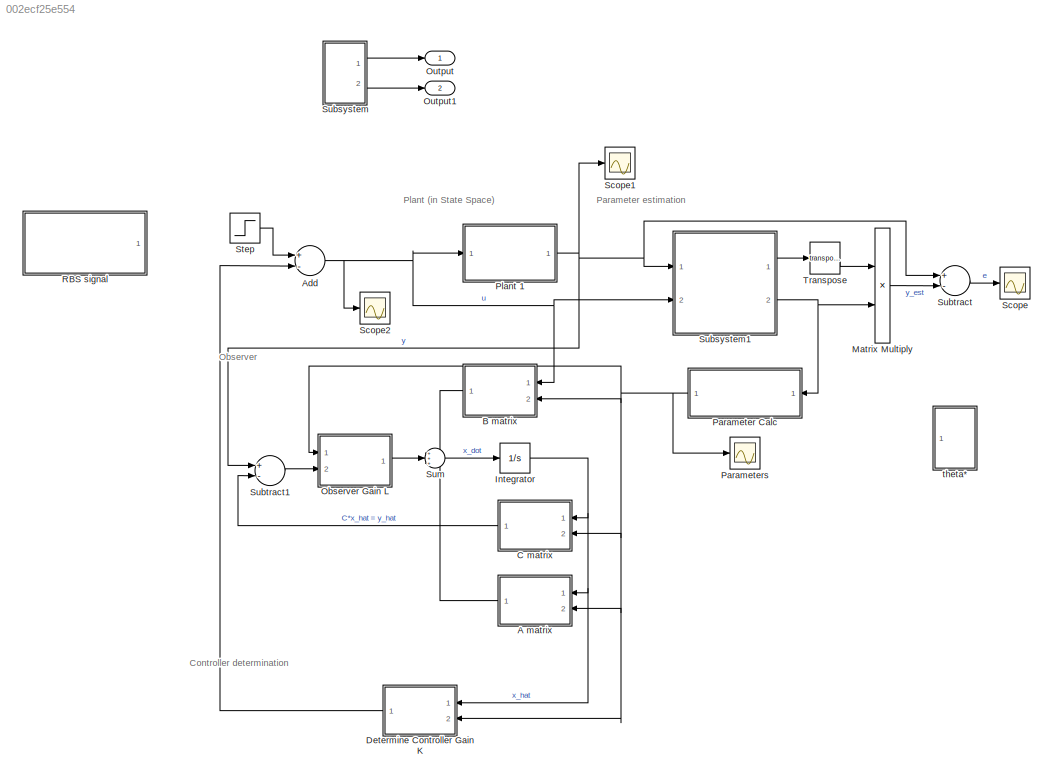
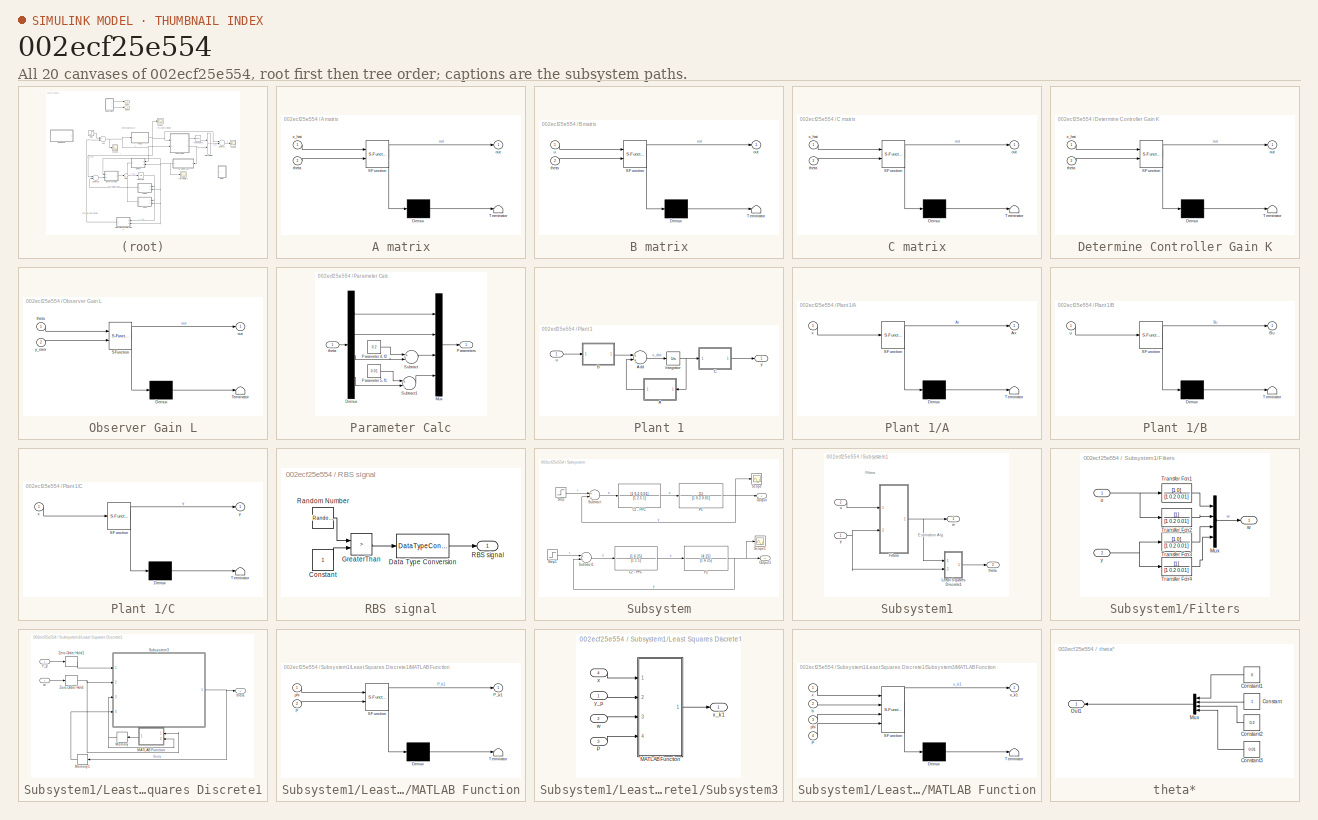
[diagram: thumbnail index - all 20 canvases of the model, root first then tree order]
MODEL slx_002ecf25e554
KIND model
CONFIG AbsTol = auto
CONFIG EnableMultiTasking = off
CONFIG FixedStep = auto
CONFIG MaxStep = auto
CONFIG MinStep = auto
CONFIG RelTol = 1e-3
CONFIG SampleTimeConstraint = Unconstrained
CONFIG Solver = VariableStepAuto
CONFIG SolverName = VariableStepAuto
CONFIG StartTime = 0.0
CONFIG StopTime = 20
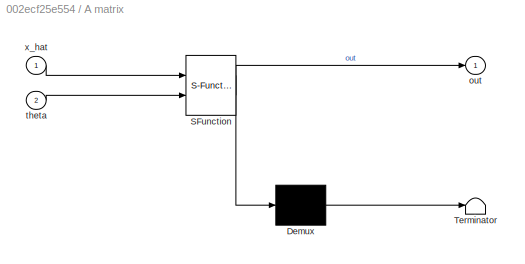
BLOCK [SubSystem] A matrix
  ErrorFcn = Stateflow.Translate.translate
  PermitHierarchicalResolution = ExplicitOnly
  Ports = [2, 1]
  RequestExecContextInheritance = off
  SFBlockType = MATLAB Function
  TreatAsAtomicUnit = on
BLOCK [Demux] A matrix/ Demux 
  Outputs = 1
  Ports = [1, 1]
BLOCK [S-Function] A matrix/ SFunction 
  EnableBusSupport = on
  FunctionName = sf_sfun
  PortCounts = [2 2]
  Ports = [2, 2]
  SFcnIsStateOwnerBlock = off
  SFunctionDeploymentMode = off
  Tag = Stateflow S-Function PPC_P1_observer 10
BLOCK [Terminator] A matrix/ Terminator 
BLOCK [Outport] A matrix/out
  IconDisplay = Port number
BLOCK [Inport] A matrix/theta
  IconDisplay = Port number
  Port = 2
BLOCK [Inport] A matrix/x_hat
  IconDisplay = Port number
BLOCK [Sum] Add
  InputSameDT = off
  Inputs = +-
  OutDataTypeStr = Inherit: Inherit via internal rule
  Ports = [2, 1]
  SaturateOnIntegerOverflow = off
BLOCK [SubSystem] B matrix
  ErrorFcn = Stateflow.Translate.translate
  PermitHierarchicalResolution = ExplicitOnly
  Ports = [2, 1]
  RequestExecContextInheritance = off
  SFBlockType = MATLAB Function
  TreatAsAtomicUnit = on
BLOCK [Demux] B matrix/ Demux 
  Outputs = 1
  Ports = [1, 1]
BLOCK [S-Function] B matrix/ SFunction 
  EnableBusSupport = on
  FunctionName = sf_sfun
  PortCounts = [2 2]
  Ports = [2, 2]
  SFcnIsStateOwnerBlock = off
  SFunctionDeploymentMode = off
  Tag = Stateflow S-Function PPC_P1_observer 8
BLOCK [Terminator] B matrix/ Terminator 
BLOCK [Outport] B matrix/out
  IconDisplay = Port number
BLOCK [Inport] B matrix/theta
  IconDisplay = Port number
  Port = 2
BLOCK [Inport] B matrix/u
  IconDisplay = Port number
BLOCK [SubSystem] C matrix
  ErrorFcn = Stateflow.Translate.translate
  PermitHierarchicalResolution = ExplicitOnly
  Ports = [2, 1]
  RequestExecContextInheritance = off
  SFBlockType = MATLAB Function
  TreatAsAtomicUnit = on
BLOCK [Demux] C matrix/ Demux 
  Outputs = 1
  Ports = [1, 1]
BLOCK [S-Function] C matrix/ SFunction 
  EnableBusSupport = on
  FunctionName = sf_sfun
  PortCounts = [2 2]
  Ports = [2, 2]
  SFcnIsStateOwnerBlock = off
  SFunctionDeploymentMode = off
  Tag = Stateflow S-Function PPC_P1_observer 9
BLOCK [Terminator] C matrix/ Terminator 
BLOCK [Outport] C matrix/out
  IconDisplay = Port number
BLOCK [Inport] C matrix/theta
  IconDisplay = Port number
  Port = 2
BLOCK [Inport] C matrix/x_hat
  IconDisplay = Port number
BLOCK [SubSystem] Determine Controller Gain K
  ErrorFcn = Stateflow.Translate.translate
  PermitHierarchicalResolution = ExplicitOnly
  Ports = [2, 1]
  RequestExecContextInheritance = off
  SFBlockType = MATLAB Function
  TreatAsAtomicUnit = on
BLOCK [Demux] Determine Controller Gain K/ Demux 
  Outputs = 1
  Ports = [1, 1]
BLOCK [S-Function] Determine Controller Gain K/ SFunction 
  EnableBusSupport = on
  FunctionName = sf_sfun
  PortCounts = [2 2]
  Ports = [2, 2]
  SFcnIsStateOwnerBlock = off
  SFunctionDeploymentMode = off
  Tag = Stateflow S-Function PPC_P1_observer 2
BLOCK [Terminator] Determine Controller Gain K/ Terminator 
BLOCK [Outport] Determine Controller Gain K/out
  IconDisplay = Port number
BLOCK [Inport] Determine Controller Gain K/theta
  IconDisplay = Port number
  Port = 2
BLOCK [Inport] Determine Controller Gain K/x_hat
  IconDisplay = Port number
BLOCK [Integrator] Integrator
  Ports = [1, 1]
BLOCK [Product] Matrix Multiply
  InputSameDT = off
  Multiplication = Matrix(*)
  OutDataTypeStr = Inherit: Inherit via internal rule
  Ports = [2, 1]
  RndMeth = Floor
  SaturateOnIntegerOverflow = off
BLOCK [SubSystem] Observer Gain L
  ErrorFcn = Stateflow.Translate.translate
  PermitHierarchicalResolution = ExplicitOnly
  Ports = [2, 1]
  RequestExecContextInheritance = off
  SFBlockType = MATLAB Function
  TreatAsAtomicUnit = on
BLOCK [Demux] Observer Gain L/ Demux 
  Outputs = 1
  Ports = [1, 1]
BLOCK [S-Function] Observer Gain L/ SFunction 
  EnableBusSupport = on
  FunctionName = sf_sfun
  PortCounts = [2 2]
  Ports = [2, 2]
  SFcnIsStateOwnerBlock = off
  SFunctionDeploymentMode = off
  Tag = Stateflow S-Function PPC_P1_observer 6
BLOCK [Terminator] Observer Gain L/ Terminator 
BLOCK [Outport] Observer Gain L/out
  IconDisplay = Port number
BLOCK [Inport] Observer Gain L/theta
  IconDisplay = Port number
BLOCK [Inport] Observer Gain L/y_error
  IconDisplay = Port number
  Port = 2
BLOCK [Outport] Output
  IconDisplay = Port number
BLOCK [Outport] Output1
  IconDisplay = Port number
  Port = 2
BLOCK [SubSystem] Parameter Calc
  Ports = [1, 1]
  RequestExecContextInheritance = off
BLOCK [Demux] Parameter Calc/Demux
  DisplayOption = bar
  Ports = [1, 4]
BLOCK [Mux] Parameter Calc/Mux
  DisplayOption = bar
  Ports = [4, 1]
BLOCK [Constant] Parameter Calc/Parameter 4, f2
  Value = 0.2
BLOCK [Constant] Parameter Calc/Parameter 5, f1
  Value = 0.01
BLOCK [Outport] Parameter Calc/Parameters
  IconDisplay = Port number
BLOCK [Sum] Parameter Calc/Subtract
  InputSameDT = off
  Inputs = +-
  OutDataTypeStr = Inherit: Inherit via internal rule
  Ports = [2, 1]
  SaturateOnIntegerOverflow = off
BLOCK [Sum] Parameter Calc/Subtract1
  InputSameDT = off
  Inputs = +-
  OutDataTypeStr = Inherit: Inherit via internal rule
  Ports = [2, 1]
  SaturateOnIntegerOverflow = off
BLOCK [Inport] Parameter Calc/theta
  IconDisplay = Port number
BLOCK [Scope] Parameters
  Floating = off
  NumInputPorts = 1
  Ports = [1]
  ScopeSpecificationString = Simulink.scopes.TimeScopeBlockCfg('CurrentConfiguration', extmgr.ConfigurationSet(extmgr.Configuration('Core','General UI',true,'FigureColor',[1 1 1]),extmgr.Configuration('Core','Source UI',true),extmgr.Configuration('Sources','WiredSimulink',true,'DataLoggingVariableName','ScopeData9'),extmgr.Configuration('Visuals','Time Domain',true,'SerializedDisplays',{struct('MinYLimReal','-0.12512','MaxYLi...<+1667ch>
BLOCK [SubSystem] Plant 1
  Ports = [1, 1]
  RequestExecContextInheritance = off
BLOCK [SubSystem] Plant 1/A
  ErrorFcn = Stateflow.Translate.translate
  PermitHierarchicalResolution = ExplicitOnly
  Ports = [1, 1]
  RequestExecContextInheritance = off
  SFBlockType = MATLAB Function
  TreatAsAtomicUnit = on
BLOCK [Demux] Plant 1/A/ Demux 
  Outputs = 1
  Ports = [1, 1]
BLOCK [S-Function] Plant 1/A/ SFunction 
  EnableBusSupport = on
  FunctionName = sf_sfun
  PortCounts = [1 2]
  Ports = [1, 2]
  SFcnIsStateOwnerBlock = off
  SFunctionDeploymentMode = off
  Tag = Stateflow S-Function PPC_P1_observer 3
BLOCK [Terminator] Plant 1/A/ Terminator 
BLOCK [Outport] Plant 1/A/Ax
  IconDisplay = Port number
BLOCK [Inport] Plant 1/A/x
  IconDisplay = Port number
BLOCK [Sum] Plant 1/Add
  InputSameDT = off
  OutDataTypeStr = Inherit: Inherit via internal rule
  Ports = [2, 1]
  SaturateOnIntegerOverflow = off
BLOCK [SubSystem] Plant 1/B
  ErrorFcn = Stateflow.Translate.translate
  PermitHierarchicalResolution = ExplicitOnly
  Ports = [1, 1]
  RequestExecContextInheritance = off
  SFBlockType = MATLAB Function
  TreatAsAtomicUnit = on
BLOCK [Demux] Plant 1/B/ Demux 
  Outputs = 1
  Ports = [1, 1]
BLOCK [S-Function] Plant 1/B/ SFunction 
  EnableBusSupport = on
  FunctionName = sf_sfun
  PortCounts = [1 2]
  Ports = [1, 2]
  SFcnIsStateOwnerBlock = off
  SFunctionDeploymentMode = off
  Tag = Stateflow S-Function PPC_P1_observer 4
BLOCK [Terminator] Plant 1/B/ Terminator 
BLOCK [Outport] Plant 1/B/Bu
  IconDisplay = Port number
BLOCK [Inport] Plant 1/B/u
  IconDisplay = Port number
BLOCK [SubSystem] Plant 1/C
  ErrorFcn = Stateflow.Translate.translate
  PermitHierarchicalResolution = ExplicitOnly
  Ports = [1, 1]
  RequestExecContextInheritance = off
  SFBlockType = MATLAB Function
  TreatAsAtomicUnit = on
BLOCK [Demux] Plant 1/C/ Demux 
  Outputs = 1
  Ports = [1, 1]
BLOCK [S-Function] Plant 1/C/ SFunction 
  EnableBusSupport = on
  FunctionName = sf_sfun
  PortCounts = [1 2]
  Ports = [1, 2]
  SFcnIsStateOwnerBlock = off
  SFunctionDeploymentMode = off
  Tag = Stateflow S-Function PPC_P1_observer 5
BLOCK [Terminator] Plant 1/C/ Terminator 
BLOCK [Inport] Plant 1/C/x
  IconDisplay = Port number
BLOCK [Outport] Plant 1/C/y
  IconDisplay = Port number
BLOCK [Integrator] Plant 1/Integrator
  InitialCondition = [0 0]
  Ports = [1, 1]
BLOCK [Inport] Plant 1/u
  IconDisplay = Port number
  PortDimensions = 1
BLOCK [Outport] Plant 1/y
  IconDisplay = Port number
BLOCK [SubSystem] RBS signal
  Ports = [0, 1]
  RequestExecContextInheritance = off
BLOCK [Constant] RBS signal/Constant
BLOCK [DataTypeConversion] RBS signal/Data Type Conversion
  OutDataTypeStr = double
  RndMeth = Floor
  SaturateOnIntegerOverflow = off
BLOCK [RelationalOperator] RBS signal/GreaterThan
  InputSameDT = off
  Operator = >
  OutDataTypeStr = boolean
  Ports = [2, 1]
  RndMeth = Simplest
BLOCK [Outport] RBS signal/RBS signal
  IconDisplay = Port number
BLOCK [RandomNumber] RBS signal/Random Number
  Mean = 1
  SampleTime = 0.1
BLOCK [Scope] Scope
  Floating = off
  NumInputPorts = 1
  Ports = [1]
  ScopeSpecificationString = Simulink.scopes.TimeScopeBlockCfg('CurrentConfiguration', extmgr.ConfigurationSet(extmgr.Configuration('Core','General UI',true),extmgr.Configuration('Core','Source UI',true),extmgr.Configuration('Sources','WiredSimulink',true,'DataLoggingVariableName','ScopeData1'),extmgr.Configuration('Visuals','Time Domain',true,'SerializedDisplays',{struct('MinYLimReal','-0.00008','MaxYLimReal','0.00044','YLab...<+1360ch>
BLOCK [Scope] Scope1
  Floating = off
  NumInputPorts = 1
  Ports = [1]
  ScopeSpecificationString = Simulink.scopes.TimeScopeBlockCfg('CurrentConfiguration', extmgr.ConfigurationSet(extmgr.Configuration('Core','General UI',true),extmgr.Configuration('Core','Source UI',true),extmgr.Configuration('Sources','WiredSimulink',true,'DataLoggingVariableName','ScopeData2'),extmgr.Configuration('Visuals','Time Domain',true,'SerializedDisplays',{struct('MinYLimReal','-0.125','MaxYLimReal','1.12498','YLabel...<+1385ch>
BLOCK [Scope] Scope2
  Floating = off
  NumInputPorts = 1
  Ports = [1]
  ScopeSpecificationString = Simulink.scopes.TimeScopeBlockCfg('CurrentConfiguration', extmgr.ConfigurationSet(extmgr.Configuration('Core','General UI',true),extmgr.Configuration('Core','Source UI',true),extmgr.Configuration('Sources','WiredSimulink',true,'DataLoggingVariableName','ScopeData3'),extmgr.Configuration('Visuals','Time Domain',true,'SerializedDisplays',{struct('MinYLimReal','-0.21491','MaxYLimReal','1.13499','YLab...<+1360ch>
BLOCK [Step] Step
  SampleTime = 0
BLOCK [SubSystem] Subsystem
  Ports = [0, 2]
  RequestExecContextInheritance = off
BLOCK [TransferFcn] Subsystem/C1 - PPC
  Denominator = [1 2.5 1]
  Numerator = [1 0.2 0.01]
BLOCK [TransferFcn] Subsystem/C2 - PPC
  Denominator = [1 1 1]
  Numerator = [1 6 25]
BLOCK [Outport] Subsystem/Output
  IconDisplay = Port number
BLOCK [Outport] Subsystem/Output1
  IconDisplay = Port number
  Port = 2
BLOCK [TransferFcn] Subsystem/P1
  Denominator = [1 0.2 0.01]
BLOCK [TransferFcn] Subsystem/P2
  Denominator = [1 6 25]
  Numerator = [4 25]
BLOCK [Scope] Subsystem/Scope
  Floating = off
  NumInputPorts = 1
  Ports = [1]
  ScopeSpecificationString = Simulink.scopes.TimeScopeBlockCfg('CurrentConfiguration', extmgr.ConfigurationSet(extmgr.Configuration('Core','General UI',true),extmgr.Configuration('Core','Source UI',true),extmgr.Configuration('Sources','WiredSimulink',true),extmgr.Configuration('Visuals','Time Domain',true,'SerializedDisplays',{struct('MinYLimReal','-0.06266','MaxYLimReal','0.56398','YLabelReal','','MinYLimMag','0.00000','MaxY...<+1321ch>
BLOCK [Scope] Subsystem/Scope1
  Floating = off
  NumInputPorts = 1
  Ports = [1]
  ScopeSpecificationString = Simulink.scopes.TimeScopeBlockCfg('CurrentConfiguration', extmgr.ConfigurationSet(extmgr.Configuration('Core','General UI',true),extmgr.Configuration('Core','Source UI',true),extmgr.Configuration('Sources','WiredSimulink',true,'DataLoggingVariableName','ScopeData1'),extmgr.Configuration('Visuals','Time Domain',true,'SerializedDisplays',{struct('MinYLimReal','-0.15006','MaxYLimReal','1.35052','YLab...<+1392ch>
BLOCK [Step] Subsystem/Step
  SampleTime = 0
BLOCK [Step] Subsystem/Step1
  SampleTime = 0
BLOCK [Sum] Subsystem/Subtract
  InputSameDT = off
  Inputs = +-
  OutDataTypeStr = Inherit: Inherit via internal rule
  Ports = [2, 1]
  SaturateOnIntegerOverflow = off
BLOCK [Sum] Subsystem/Subtract1
  InputSameDT = off
  Inputs = +-
  OutDataTypeStr = Inherit: Inherit via internal rule
  Ports = [2, 1]
  SaturateOnIntegerOverflow = off
BLOCK [SubSystem] Subsystem1
  Ports = [2, 2]
  RequestExecContextInheritance = off
BLOCK [SubSystem] Subsystem1/Filters
  Ports = [2, 1]
  RequestExecContextInheritance = off
BLOCK [Mux] Subsystem1/Filters/Mux
  DisplayOption = bar
  Ports = [4, 1]
BLOCK [TransferFcn] Subsystem1/Filters/Transfer Fcn1
  Denominator = [1 0.2 0.01]
  Numerator = [1 0]
BLOCK [TransferFcn] Subsystem1/Filters/Transfer Fcn2
  Denominator = [1 0.2 0.01]
BLOCK [TransferFcn] Subsystem1/Filters/Transfer Fcn3
  Denominator = [1 0.2 0.01]
  Numerator = [1 0]
BLOCK [TransferFcn] Subsystem1/Filters/Transfer Fcn4
  Denominator = [1 0.2 0.01]
BLOCK [Inport] Subsystem1/Filters/u
  IconDisplay = Port number
  PortDimensions = 1
BLOCK [Outport] Subsystem1/Filters/w
  IconDisplay = Port number
BLOCK [Inport] Subsystem1/Filters/y
  IconDisplay = Port number
  Port = 2
BLOCK [SubSystem] Subsystem1/Least Squares Discrete1
  Ports = [2, 1]
  RequestExecContextInheritance = off
BLOCK [SubSystem] Subsystem1/Least Squares Discrete1/MATLAB Function
  ErrorFcn = Stateflow.Translate.translate
  PermitHierarchicalResolution = ExplicitOnly
  Ports = [2, 1]
  RequestExecContextInheritance = off
  SFBlockType = MATLAB Function
  TreatAsAtomicUnit = on
BLOCK [Demux] Subsystem1/Least Squares Discrete1/MATLAB Function/ Demux 
  Outputs = 1
  Ports = [1, 1]
BLOCK [S-Function] Subsystem1/Least Squares Discrete1/MATLAB Function/ SFunction 
  EnableBusSupport = on
  FunctionName = sf_sfun
  PortCounts = [2 2]
  Ports = [2, 2]
  SFcnIsStateOwnerBlock = off
  SFunctionDeploymentMode = off
  Tag = Stateflow S-Function PPC_P1_observer 1
BLOCK [Terminator] Subsystem1/Least Squares Discrete1/MATLAB Function/ Terminator 
BLOCK [Inport] Subsystem1/Least Squares Discrete1/MATLAB Function/P
  IconDisplay = Port number
  Port = 2
BLOCK [Outport] Subsystem1/Least Squares Discrete1/MATLAB Function/P_k1
  IconDisplay = Port number
BLOCK [Inport] Subsystem1/Least Squares Discrete1/MATLAB Function/phi
  IconDisplay = Port number
BLOCK [Memory] Subsystem1/Least Squares Discrete1/Memory
  InitialCondition = 100000*eye(4)
BLOCK [Memory] Subsystem1/Least Squares Discrete1/Memory1
  InitialCondition = [0 0 0 0]
BLOCK [SubSystem] Subsystem1/Least Squares Discrete1/Subsystem3
  Ports = [4, 1]
  RequestExecContextInheritance = off
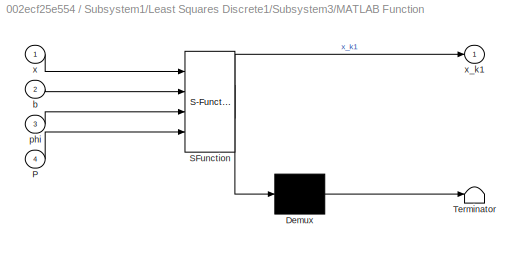
BLOCK [SubSystem] Subsystem1/Least Squares Discrete1/Subsystem3/MATLAB Function
  ErrorFcn = Stateflow.Translate.translate
  PermitHierarchicalResolution = ExplicitOnly
  Ports = [4, 1]
  RequestExecContextInheritance = off
  SFBlockType = MATLAB Function
  TreatAsAtomicUnit = on
BLOCK [Demux] Subsystem1/Least Squares Discrete1/Subsystem3/MATLAB Function/ Demux 
  Outputs = 1
  Ports = [1, 1]
BLOCK [S-Function] Subsystem1/Least Squares Discrete1/Subsystem3/MATLAB Function/ SFunction 
  EnableBusSupport = on
  FunctionName = sf_sfun
  PortCounts = [4 2]
  Ports = [4, 2]
  SFcnIsStateOwnerBlock = off
  SFunctionDeploymentMode = off
  Tag = Stateflow S-Function PPC_P1_observer 7
BLOCK [Terminator] Subsystem1/Least Squares Discrete1/Subsystem3/MATLAB Function/ Terminator 
BLOCK [Inport] Subsystem1/Least Squares Discrete1/Subsystem3/MATLAB Function/P
  IconDisplay = Port number
  Port = 4
BLOCK [Inport] Subsystem1/Least Squares Discrete1/Subsystem3/MATLAB Function/b
  IconDisplay = Port number
  Port = 2
BLOCK [Inport] Subsystem1/Least Squares Discrete1/Subsystem3/MATLAB Function/phi
  IconDisplay = Port number
  Port = 3
BLOCK [Inport] Subsystem1/Least Squares Discrete1/Subsystem3/MATLAB Function/x
  IconDisplay = Port number
BLOCK [Outport] Subsystem1/Least Squares Discrete1/Subsystem3/MATLAB Function/x_k1
  IconDisplay = Port number
BLOCK [Inport] Subsystem1/Least Squares Discrete1/Subsystem3/P
  IconDisplay = Port number
  Port = 3
BLOCK [Inport] Subsystem1/Least Squares Discrete1/Subsystem3/w
  IconDisplay = Port number
  Port = 2
BLOCK [Inport] Subsystem1/Least Squares Discrete1/Subsystem3/x
  IconDisplay = Port number
  Port = 4
BLOCK [Outport] Subsystem1/Least Squares Discrete1/Subsystem3/x_k1
  IconDisplay = Port number
BLOCK [Inport] Subsystem1/Least Squares Discrete1/Subsystem3/y_p
  IconDisplay = Port number
BLOCK [Inport] Subsystem1/Least Squares Discrete1/Y_p
  IconDisplay = Port number
  Port = 2
BLOCK [ZeroOrderHold] Subsystem1/Least Squares Discrete1/Zero-Order Hold
  SampleTime = 0.001
BLOCK [ZeroOrderHold] Subsystem1/Least Squares Discrete1/Zero-Order Hold1
  SampleTime = 0.001
BLOCK [Outport] Subsystem1/Least Squares Discrete1/theta
  IconDisplay = Port number
BLOCK [Inport] Subsystem1/Least Squares Discrete1/w
  IconDisplay = Port number
BLOCK [Outport] Subsystem1/theta
  IconDisplay = Port number
  Port = 2
BLOCK [Inport] Subsystem1/u
  IconDisplay = Port number
  Port = 2
BLOCK [Outport] Subsystem1/w
  IconDisplay = Port number
BLOCK [Inport] Subsystem1/y
  IconDisplay = Port number
BLOCK [Sum] Subtract
  InputSameDT = off
  Inputs = +-
  OutDataTypeStr = Inherit: Inherit via internal rule
  Ports = [2, 1]
  SaturateOnIntegerOverflow = off
BLOCK [Sum] Subtract1
  InputSameDT = off
  Inputs = +-
  OutDataTypeStr = Inherit: Inherit via internal rule
  Ports = [2, 1]
  SaturateOnIntegerOverflow = off
BLOCK [Sum] Sum
  IconShape = round
  InputSameDT = off
  Inputs = +++
  OutDataTypeStr = Inherit: Inherit via internal rule
  Ports = [3, 1]
  SaturateOnIntegerOverflow = off
BLOCK [Math] Transpose
  Operator = transpose
  Ports = [1, 1]
BLOCK [SubSystem] theta*
  Ports = [0, 1]
  RequestExecContextInheritance = off
BLOCK [Constant] theta*/Constant
BLOCK [Constant] theta*/Constant1
  Value = 0
BLOCK [Constant] theta*/Constant2
  Value = 0.2
BLOCK [Constant] theta*/Constant3
  Value = 0.01
BLOCK [Mux] theta*/Mux
  DisplayOption = bar
  Ports = [4, 1]
BLOCK [Outport] theta*/Out1
  IconDisplay = Port number
ANNOTATION (root): Controller determination
ANNOTATION (root): Observer
ANNOTATION (root): Parameter estimation
ANNOTATION (root): Plant (in State Space)
ANNOTATION Subsystem1: Estimation Alg
ANNOTATION Subsystem1: Filters
LINE A matrix:1 -> Sum:3
NET Add:1 -> B matrix:1, Plant 1:1, Scope2:1, Subsystem1:2
LINE B matrix:1 -> Sum:1
LINE C matrix:1 -> Subtract1:2
LINE Determine Controller Gain K:1 -> Add:2
NET Integrator:1 -> A matrix:1, C matrix:1, Determine Controller Gain K:1
LINE Matrix Multiply:1 -> Subtract:2
LINE Observer Gain L:1 -> Sum:2
LINE Parameter Calc/Demux:1 -> Parameter Calc/Mux:1
LINE Parameter Calc/Demux:2 -> Parameter Calc/Mux:2
LINE Parameter Calc/Demux:3 -> Parameter Calc/Subtract:2
LINE Parameter Calc/Demux:4 -> Parameter Calc/Subtract1:2
LINE Parameter Calc/Mux:1 -> Parameter Calc/Parameters:1
LINE Parameter Calc/Parameter 4, f2:1 -> Parameter Calc/Subtract:1
LINE Parameter Calc/Parameter 5, f1:1 -> Parameter Calc/Subtract1:1
LINE Parameter Calc/Subtract1:1 -> Parameter Calc/Mux:4
LINE Parameter Calc/Subtract:1 -> Parameter Calc/Mux:3
LINE Parameter Calc/theta:1 -> Parameter Calc/Demux:1
NET Parameter Calc:1 -> A matrix:2, B matrix:2, C matrix:2, Determine Controller Gain K:2, Observer Gain L:1, Parameters:1
LINE Plant 1/A:1 -> Plant 1/Add:2
LINE Plant 1/Add:1 -> Plant 1/Integrator:1
LINE Plant 1/B:1 -> Plant 1/Add:1
LINE Plant 1/C:1 -> Plant 1/y:1
NET Plant 1/Integrator:1 -> Plant 1/A:1, Plant 1/C:1
LINE Plant 1/u:1 -> Plant 1/B:1
NET Plant 1:1 -> Scope1:1, Subsystem1:1, Subtract1:1, Subtract:1
LINE RBS signal/Constant:1 -> RBS signal/GreaterThan:2
LINE RBS signal/Data Type Conversion:1 -> RBS signal/RBS signal:1
LINE RBS signal/GreaterThan:1 -> RBS signal/Data Type Conversion:1
LINE RBS signal/Random Number:1 -> RBS signal/GreaterThan:1
LINE Step:1 -> Add:1
LINE Subsystem/C1 - PPC:1 -> Subsystem/P1:1
LINE Subsystem/C2 - PPC:1 -> Subsystem/P2:1
NET Subsystem/P1:1 -> Subsystem/Output:1, Subsystem/Scope:1, Subsystem/Subtract:2
NET Subsystem/P2:1 -> Subsystem/Output1:1, Subsystem/Scope1:1, Subsystem/Subtract1:2
LINE Subsystem/Step1:1 -> Subsystem/Subtract1:1
LINE Subsystem/Step:1 -> Subsystem/Subtract:1
LINE Subsystem/Subtract1:1 -> Subsystem/C2 - PPC:1
LINE Subsystem/Subtract:1 -> Subsystem/C1 - PPC:1
LINE Subsystem1/Filters/Mux:1 -> Subsystem1/Filters/w:1
LINE Subsystem1/Filters/Transfer Fcn1:1 -> Subsystem1/Filters/Mux:1
LINE Subsystem1/Filters/Transfer Fcn2:1 -> Subsystem1/Filters/Mux:2
LINE Subsystem1/Filters/Transfer Fcn3:1 -> Subsystem1/Filters/Mux:3
LINE Subsystem1/Filters/Transfer Fcn4:1 -> Subsystem1/Filters/Mux:4
NET Subsystem1/Filters/u:1 -> Subsystem1/Filters/Transfer Fcn1:1, Subsystem1/Filters/Transfer Fcn2:1
NET Subsystem1/Filters/y:1 -> Subsystem1/Filters/Transfer Fcn3:1, Subsystem1/Filters/Transfer Fcn4:1
NET Subsystem1/Filters:1 -> Subsystem1/Least Squares Discrete1:1, Subsystem1/w:1
LINE Subsystem1/Least Squares Discrete1/MATLAB Function:1 -> Subsystem1/Least Squares Discrete1/Memory:1
LINE Subsystem1/Least Squares Discrete1/Memory1:1 -> Subsystem1/Least Squares Discrete1/Subsystem3:4
NET Subsystem1/Least Squares Discrete1/Memory:1 -> Subsystem1/Least Squares Discrete1/MATLAB Function:2, Subsystem1/Least Squares Discrete1/Subsystem3:3
LINE Subsystem1/Least Squares Discrete1/Subsystem3/MATLAB Function:1 -> Subsystem1/Least Squares Discrete1/Subsystem3/x_k1:1
LINE Subsystem1/Least Squares Discrete1/Subsystem3/P:1 -> Subsystem1/Least Squares Discrete1/Subsystem3/MATLAB Function:4
LINE Subsystem1/Least Squares Discrete1/Subsystem3/w:1 -> Subsystem1/Least Squares Discrete1/Subsystem3/MATLAB Function:3
LINE Subsystem1/Least Squares Discrete1/Subsystem3/x:1 -> Subsystem1/Least Squares Discrete1/Subsystem3/MATLAB Function:1
LINE Subsystem1/Least Squares Discrete1/Subsystem3/y_p:1 -> Subsystem1/Least Squares Discrete1/Subsystem3/MATLAB Function:2
NET Subsystem1/Least Squares Discrete1/Subsystem3:1 -> Subsystem1/Least Squares Discrete1/Memory1:1, Subsystem1/Least Squares Discrete1/theta:1
LINE Subsystem1/Least Squares Discrete1/Y_p:1 -> Subsystem1/Least Squares Discrete1/Zero-Order Hold1:1
LINE Subsystem1/Least Squares Discrete1/Zero-Order Hold1:1 -> Subsystem1/Least Squares Discrete1/Subsystem3:1
NET Subsystem1/Least Squares Discrete1/Zero-Order Hold:1 -> Subsystem1/Least Squares Discrete1/MATLAB Function:1, Subsystem1/Least Squares Discrete1/Subsystem3:2
LINE Subsystem1/Least Squares Discrete1/w:1 -> Subsystem1/Least Squares Discrete1/Zero-Order Hold:1
LINE Subsystem1/Least Squares Discrete1:1 -> Subsystem1/theta:1
LINE Subsystem1/u:1 -> Subsystem1/Filters:1
NET Subsystem1/y:1 -> Subsystem1/Filters:2, Subsystem1/Least Squares Discrete1:2
LINE Subsystem1:1 -> Transpose:1
NET Subsystem1:2 -> Matrix Multiply:2, Parameter Calc:1
LINE Subsystem:1 -> Output:1
LINE Subsystem:2 -> Output1:1
LINE Subtract1:1 -> Observer Gain L:2
LINE Subtract:1 -> Scope:1
LINE Sum:1 -> Integrator:1
LINE Transpose:1 -> Matrix Multiply:1
LINE theta*/Constant1:1 -> theta*/Mux:1
LINE theta*/Constant2:1 -> theta*/Mux:3
LINE theta*/Constant3:1 -> theta*/Mux:4
LINE theta*/Constant:1 -> theta*/Mux:2
LINE theta*/Mux:1 -> theta*/Out1:1
note: NET lines group one-source signal fan-out (src -> all destinations, sorted); 1:1 wires keep LINE
CHART Subsystem1/Least Squares Discrete1/MATLAB Function states=1 transitions=1
  STATE_LABEL 'eML_blk_kernel()'
  STATE_LABEL "SCRIPT:\nfunction P_k1 = fcn(phi,P)\nalpha = 1;\nlambda = 1;\n\nP_k1 = 1/alpha*P - (lambda*lambda*P*phi*phi'*P)/(1+lambda*phi'*P*phi);\n"
CHART Determine Controller Gain K states=1 transitions=1
  STATE_LABEL 'eML_blk_kernel()'
  STATE_LABEL 'SCRIPT:\nfunction out = fcn(x_hat,theta)\n% theta = estimations of parameters\n% Goal of this function is to construct the estimated plant in terms of\n% state space - A, B, C - and then determine the K controller that is\n% appropriate to achieve desired pole placement (PPC control)\na0 = theta(4); a1 = theta(3); %values of A in CCF\np1 = -1; p2 = -1; % desired pole values\nalpha = [-(p1+p2) p1*p2];\n\nK =...<+45ch>'
CHART Plant 1/A states=1 transitions=1
  STATE_LABEL 'eML_blk_kernel()'
  STATE_LABEL 'SCRIPT:\nfunction Ax = fcn(x)\nA = [0 1; -0.01 -0.2];\nAx = A*x;\n'
CHART Plant 1/B states=1 transitions=1
  STATE_LABEL 'eML_blk_kernel()'
  STATE_LABEL "SCRIPT:\nfunction Bu = fcn(u)\nB = [0 1]';\nBu = B*u;\n"
CHART Plant 1/C states=1 transitions=1
  STATE_LABEL 'eML_blk_kernel()'
  STATE_LABEL 'SCRIPT:\nfunction y = fcn(x)\nC = [1 0];\ny = C*x;\n'
CHART Observer Gain L states=1 transitions=1
  STATE_LABEL 'eML_blk_kernel()'
  STATE_LABEL 'SCRIPT:\nfunction out = fcn(theta,y_error)\n\na0 = theta(4); a1 = theta(3); %values of A in CCF\np1 = -10; p2 = -10; % desired pole values\nalpha = [-(p1+p2) p1*p2];\n\nL = [alpha(2)-a0 alpha(1)-a1];\n\nout = L*y_error;\n\n\n'
CHART Subsystem1/Least Squares Discrete1/Subsystem3/MATLAB Function states=1 transitions=1
  STATE_LABEL 'eML_blk_kernel()'
  STATE_LABEL "SCRIPT:\nfunction x_k1 = fcn(x,b,phi,P)\nlambda = 1; \n% X_k1 = theta_k+1\n% b = y(t)\n\nx_k1 = x - (lambda*P*phi*(phi'*x-b))/(1+lambda*phi'*P*phi);\n"
CHART B matrix states=1 transitions=1
  STATE_LABEL 'eML_blk_kernel()'
  STATE_LABEL 'SCRIPT:\nfunction out = fcn(u, theta)\n\nB = [0; 1];\nout = B*u;\n\n\n'
CHART C matrix states=1 transitions=1
  STATE_LABEL 'eML_blk_kernel()'
  STATE_LABEL 'SCRIPT:\nfunction out = fcn(x_hat, theta)\n% theta = estimations of parameters\n\nC = [theta(2) theta(1)];\nout = C*x_hat;\n\n\n'
CHART A matrix states=1 transitions=1
  STATE_LABEL 'eML_blk_kernel()'
  STATE_LABEL 'SCRIPT:\nfunction out = fcn(x_hat, theta)\na0 = theta(4); a1 = theta(3); %values of A in CCF \nA = [0 1; -a0 -a1];\nout = A*x_hat;\n\n\n'
